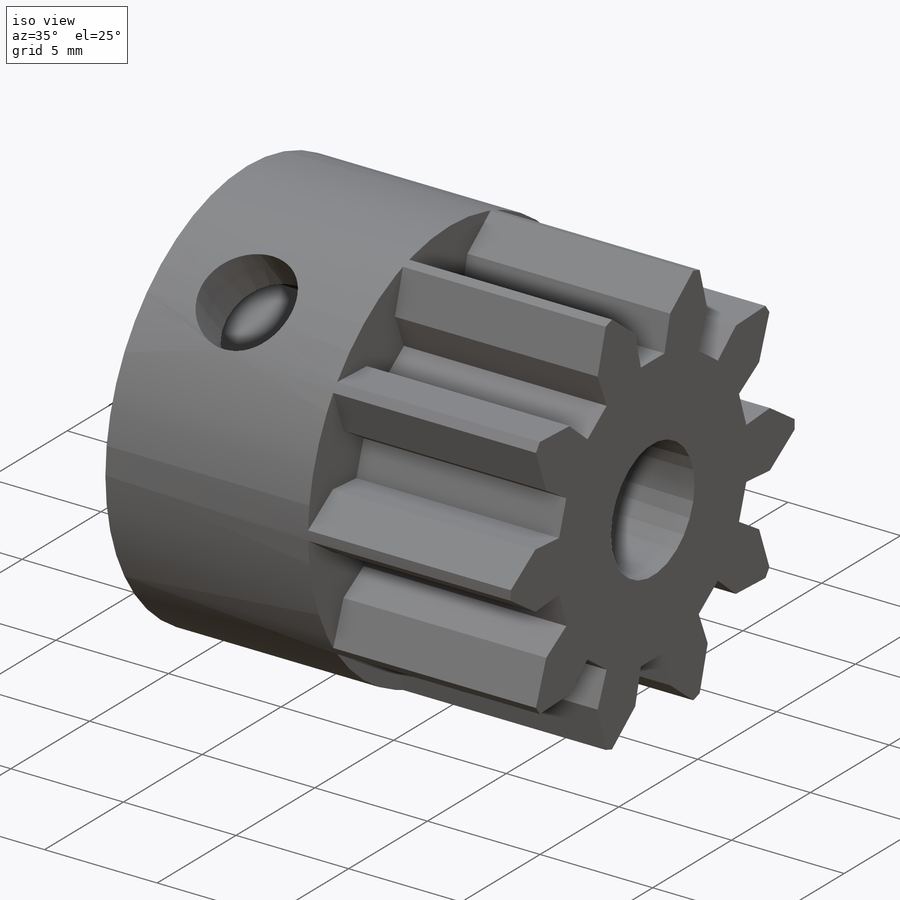
[diagram: iso view]
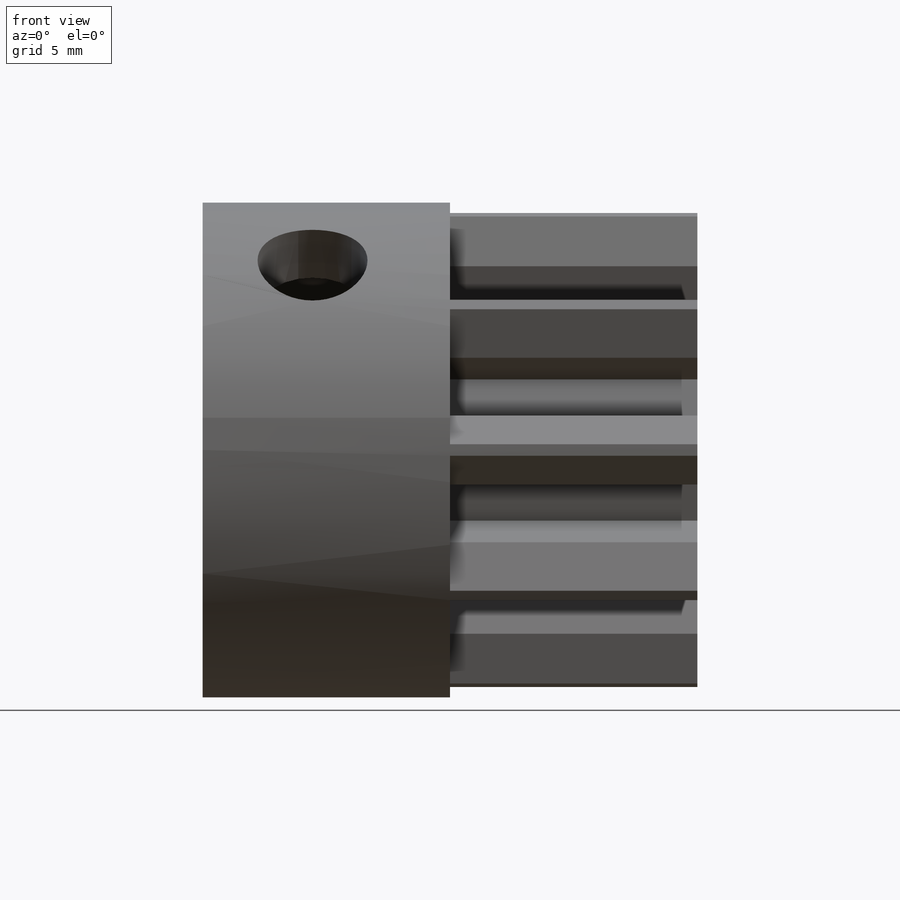
[diagram: front view]
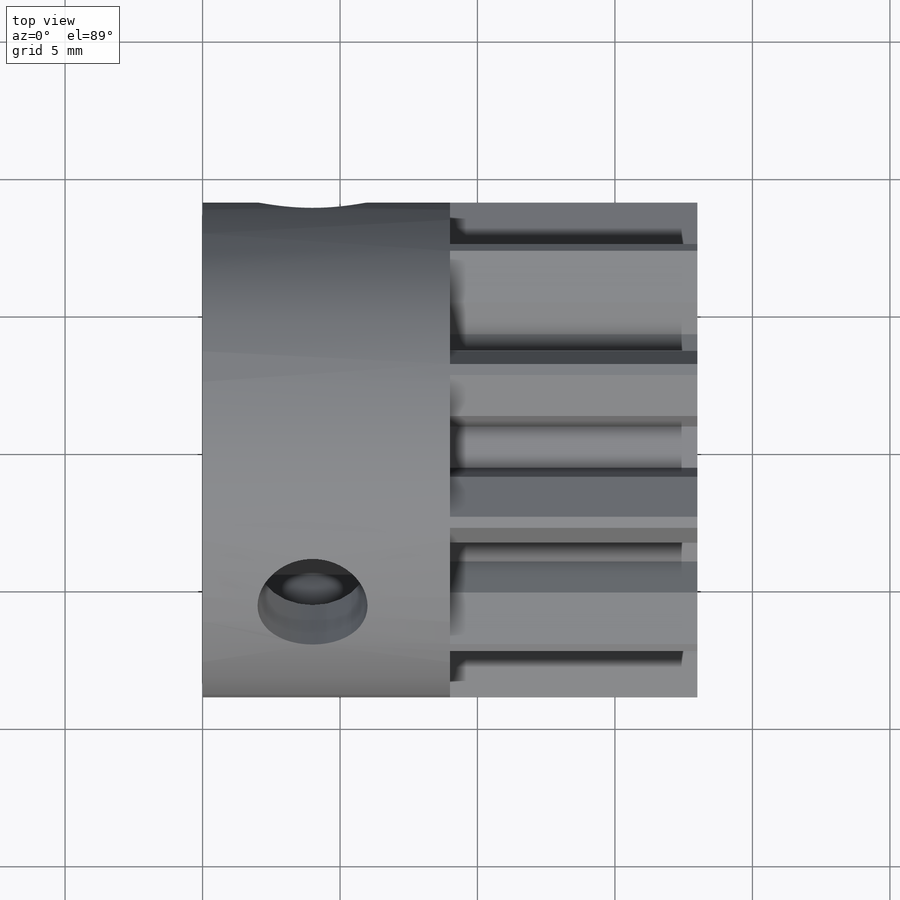
[diagram: top view]
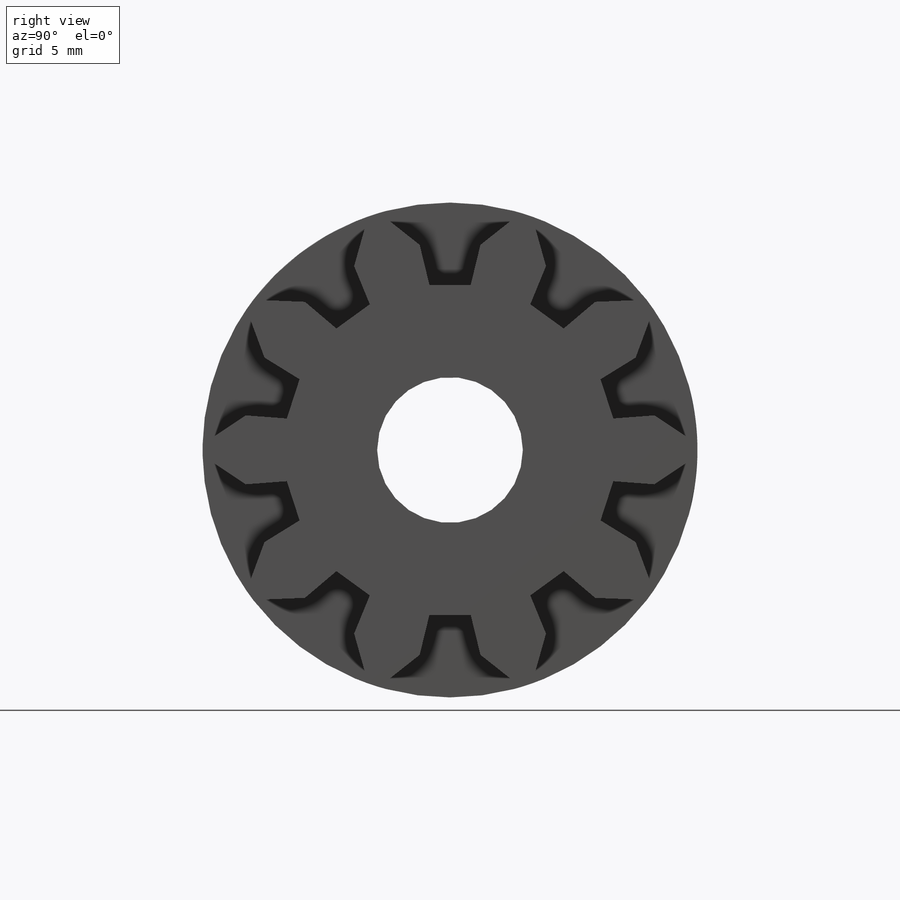
[diagram: right view]
SOLIDWORKS PART (.sldprt)
format: sldprt  version: not decoded by parser v0  size: 296,448 bytes
history: native  units: mm
features: plane x4, sketch x4, cut_extrude x3, pattern_circular x2, material x1, extrude x1 (+10 scaffold rows collapsed)
feature tree (25):
  scaffold x10  (default folders/planes/origin — collapsed)
  material  "Matériau <non spécifié>"
  plane  "Plan de face"
  plane  "Plan de dessus"
  plane  "Plan de droite"
  sketch  "Esquisse1"  dims[D1=18.0mm D2=5.3mm]
  extrude  "Boss.-Extru.1"  Depth=18mm
  sketch  "Esquisse5"  dims[c1.D1=1.5mm c1.D2=3.0mm c1.D3=1.5mm c1.D4=~8.930501mm c2.D4=140.0deg c2.D5=~1.635165mm c3.D5=140.0deg c3.D1=1.5mm c3.D4=1.5mm c4.D4=142.0deg c4.D5=2.21mm c4.D6=~5.159228mm]
  cut_extrude  "Enlèv. mat.-Extru.2"  Depth=9mm
  pattern_circular  "Répétition circulaire1"  Count=10 Angle=360deg
  sketch  "Esquisse6"  dims[D1=6.0mm D2=3.0mm D3=2.5mm]
  cut_extrude  "Enlèv. mat.-Extru.3"  Depth=7mm
  plane  "Plan1"
  sketch  "Esquisse7"  dims[c1.D2=4.0mm c1.D1=4.0mm c2.D2=4.0mm]
  cut_extrude  "Enlèv. mat.-Extru.4"  Depth=9mm
  pattern_circular  "Répétition circulaire2"  Count=2 Angle=130deg
decode coverage: 10 of 10 modeling features carry decoded parameters
note: ~ marks probable driven/reference dimensions
note: suppression state not decoded; provenance and decode notes live in map.json
